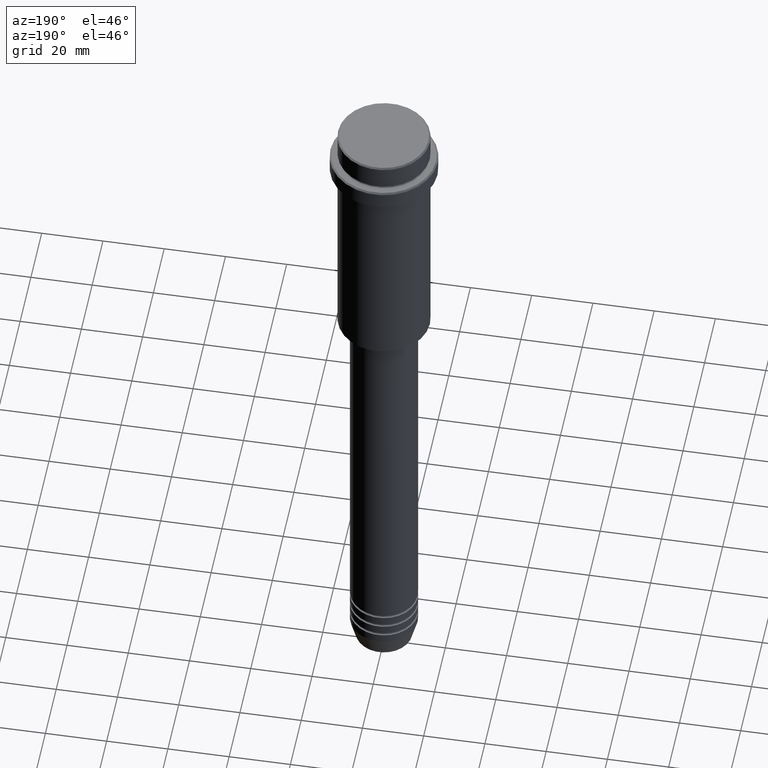
[diagram: clean part render]
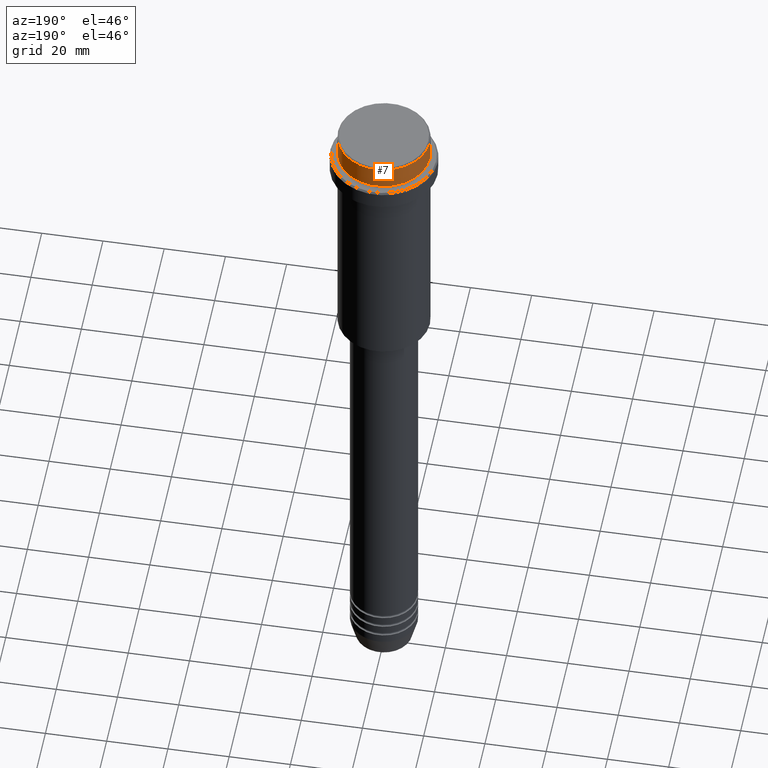
[diagram: same view with one face highlighted and labeled with its STEP entity id]
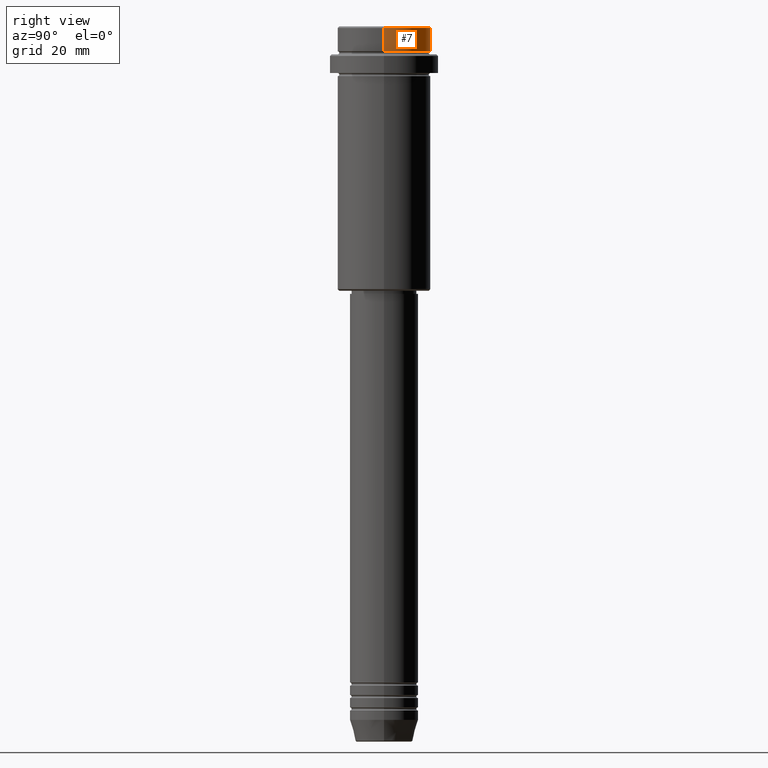
[diagram: same view with one face highlighted and labeled with its STEP entity id]
A machine part, auxiliary view. The second image highlights one B-rep face of the part: STEP entity #7.
A second angle (right view) of the same face is appended — the face is thin or edge-on in the first view.
In plain terms, the highlighted cylindrical surface (partial cylindrical patch) has radius 15 mm, axis along (-0, -0, 1).
Its self-contained STEP definition (entity closure, byte-faithful):
#7 = ADVANCED_FACE ( 'NONE', ( #242 ), #124, .T. ) ;
#13 = VERTEX_POINT ( 'NONE', #903 ) ;
#76 = CIRCLE ( 'NONE', #1250, 15.00000000000000000 ) ;
#122 = EDGE_LOOP ( 'NONE', ( #752, #883, #255, #1248 ) ) ;
#124 = CYLINDRICAL_SURFACE ( 'NONE', #1113, 15.00000000000000000 ) ;
#200 = LINE ( 'NONE', #983, #209 ) ;
#209 = VECTOR ( 'NONE', #1199, 1000.000000000000000 ) ;
#212 = DIRECTION ( 'NONE',  ( 1.000000000000000000, 0.000000000000000000, 0.000000000000000000 ) ) ;
#237 = CARTESIAN_POINT ( 'NONE',  ( 0.000000000000000000, 0.000000000000000000, 0.000000000000000000 ) ) ;
#242 = FACE_OUTER_BOUND ( 'NONE', #122, .T. ) ;
#255 = ORIENTED_EDGE ( 'NONE', *, *, #1099, .T. ) ;
#289 = CARTESIAN_POINT ( 'NONE',  ( 0.000000000000000000, 0.000000000000000000, -0.4999999999999831246 ) ) ;
#306 = EDGE_CURVE ( 'NONE', #13, #740, #200, .T. ) ;
#339 = DIRECTION ( 'NONE',  ( 1.000000000000000000, 0.000000000000000000, 0.000000000000000000 ) ) ;
#347 = VECTOR ( 'NONE', #1372, 1000.000000000000000 ) ;
#381 = VERTEX_POINT ( 'NONE', #442 ) ;
#442 = CARTESIAN_POINT ( 'NONE',  ( 15.00000000000000000, 0.000000000000000000, -7.999999999999998224 ) ) ;
#472 = CARTESIAN_POINT ( 'NONE',  ( 15.00000000000000000, 0.000000000000000000, 0.000000000000000000 ) ) ;
#494 = DIRECTION ( 'NONE',  ( 1.000000000000000000, 0.000000000000000000, 0.000000000000000000 ) ) ;
#662 = EDGE_CURVE ( 'NONE', #381, #13, #996, .T. ) ;
#676 = DIRECTION ( 'NONE',  ( -0.000000000000000000, -0.000000000000000000, 1.000000000000000000 ) ) ;
#740 = VERTEX_POINT ( 'NONE', #1075 ) ;
#752 = ORIENTED_EDGE ( 'NONE', *, *, #662, .T. ) ;
#790 = VERTEX_POINT ( 'NONE', #1398 ) ;
#883 = ORIENTED_EDGE ( 'NONE', *, *, #306, .T. ) ;
#903 = CARTESIAN_POINT ( 'NONE',  ( -15.00000000000000000, 1.836970198721029589E-15, -7.999999999999998224 ) ) ;
#981 = CARTESIAN_POINT ( 'NONE',  ( 0.000000000000000000, 0.000000000000000000, -7.999999999999998224 ) ) ;
#982 = EDGE_CURVE ( 'NONE', #381, #790, #1239, .T. ) ;
#983 = CARTESIAN_POINT ( 'NONE',  ( -15.00000000000000000, 1.836970198721029589E-15, 0.000000000000000000 ) ) ;
#996 = CIRCLE ( 'NONE', #1062, 15.00000000000000000 ) ;
#1062 = AXIS2_PLACEMENT_3D ( 'NONE', #981, #1186, #212 ) ;
#1075 = CARTESIAN_POINT ( 'NONE',  ( -15.00000000000000000, 1.836970198721029589E-15, -0.4999999999999831246 ) ) ;
#1099 = EDGE_CURVE ( 'NONE', #740, #790, #76, .T. ) ;
#1113 = AXIS2_PLACEMENT_3D ( 'NONE', #237, #676, #339 ) ;
#1186 = DIRECTION ( 'NONE',  ( -0.000000000000000000, -0.000000000000000000, 1.000000000000000000 ) ) ;
#1199 = DIRECTION ( 'NONE',  ( -0.000000000000000000, -0.000000000000000000, 1.000000000000000000 ) ) ;
#1239 = LINE ( 'NONE', #472, #347 ) ;
#1248 = ORIENTED_EDGE ( 'NONE', *, *, #982, .F. ) ;
#1250 = AXIS2_PLACEMENT_3D ( 'NONE', #289, #1282, #494 ) ;
#1282 = DIRECTION ( 'NONE',  ( 0.000000000000000000, 0.000000000000000000, -1.000000000000000000 ) ) ;
#1372 = DIRECTION ( 'NONE',  ( -0.000000000000000000, -0.000000000000000000, 1.000000000000000000 ) ) ;
#1398 = CARTESIAN_POINT ( 'NONE',  ( 15.00000000000000000, 0.000000000000000000, -0.4999999999999831246 ) ) ;